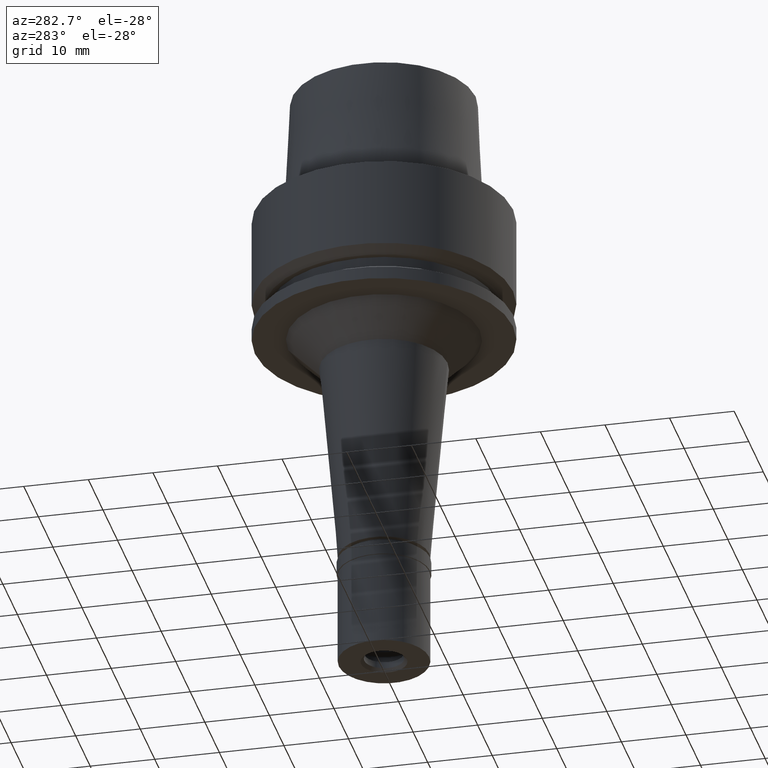
[diagram: clean part render]
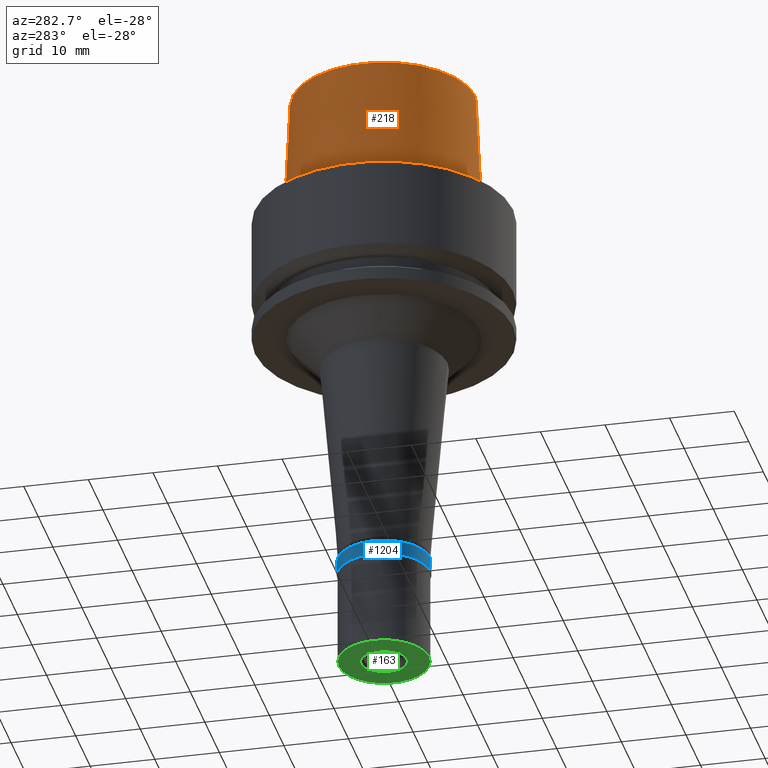
[diagram: same view with three faces highlighted in distinct colors, each labeled with its STEP entity id]
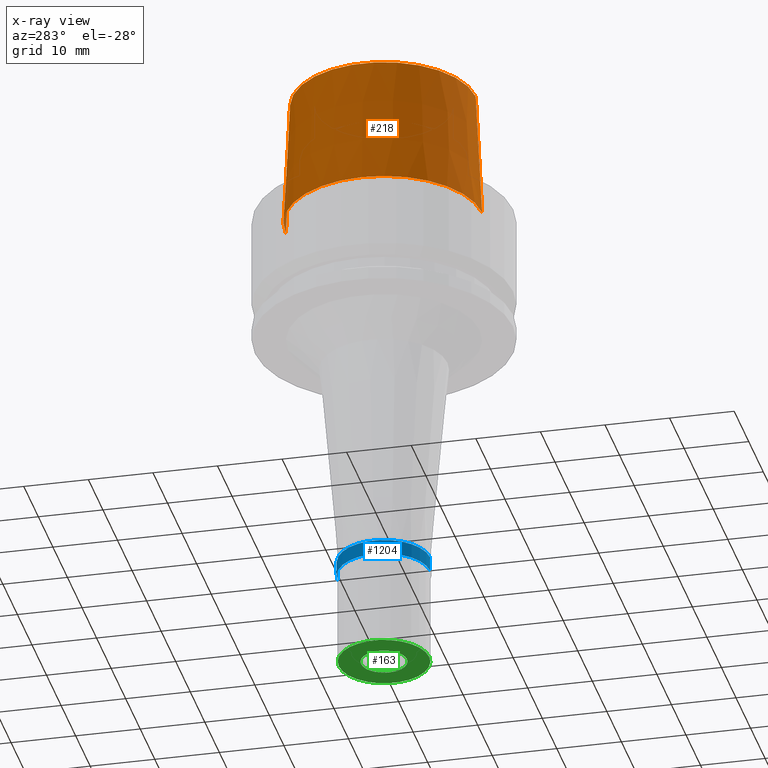
[diagram: x-ray of the same camera — body ghosted, the three highlighted faces saturated]
A machine part, auxiliary view with three faces highlighted in distinct colors.
The next image is the same camera in x-ray (body ghosted, the three faces saturated) — at least one of them is partly hidden behind the body in this view.
Their STEP definitions:

[orange] entity #218 — the highlighted conical surface has half-angle 2.862 deg.
#12 = VECTOR ( 'NONE', #862, 999.9999999999998863 ) ;
#18 = DIRECTION ( 'NONE',  ( 0.0000000000000000000, -1.000000000000000000, 0.0000000000000000000 ) ) ;
#49 = CONICAL_SURFACE ( 'NONE', #2132, 14.70000054865000116, 0.04995830450907576964 ) ;
#130 = ORIENTED_EDGE ( 'NONE', *, *, #514, .T. ) ;
#132 = AXIS2_PLACEMENT_3D ( 'NONE', #1898, #2487, #18 ) ;
#218 = ADVANCED_FACE ( 'NONE', ( #1400 ), #49, .T. ) ;
#236 = CARTESIAN_POINT ( 'NONE',  ( 0.0000000000000000000, -14.20000146305999955, 20.00000000000000000 ) ) ;
#275 = CARTESIAN_POINT ( 'NONE',  ( 0.0000000000000000000, -14.20000146305999955, 20.00000000000000000 ) ) ;
#312 = AXIS2_PLACEMENT_3D ( 'NONE', #2578, #1110, #706 ) ;
#351 = CARTESIAN_POINT ( 'NONE',  ( 0.0000000000000000000, -15.19999963424000100, 3.801403636316999971E-13 ) ) ;
#514 = EDGE_CURVE ( 'NONE', #1008, #2101, #2005, .T. ) ;
#520 = EDGE_CURVE ( 'NONE', #2101, #578, #1268, .T. ) ;
#524 = ORIENTED_EDGE ( 'NONE', *, *, #559, .F. ) ;
#531 = CIRCLE ( 'NONE', #312, 15.19999963424000100 ) ;
#540 = DIRECTION ( 'NONE',  ( 0.0000000000000000000, 0.0000000000000000000, -1.000000000000000000 ) ) ;
#559 = EDGE_CURVE ( 'NONE', #1008, #1394, #651, .T. ) ;
#578 = VERTEX_POINT ( 'NONE', #1245 ) ;
#627 = CARTESIAN_POINT ( 'NONE',  ( 0.0000000000000000000, 14.20000146305999955, 20.00000000000000000 ) ) ;
#651 = LINE ( 'NONE', #236, #1013 ) ;
#706 = DIRECTION ( 'NONE',  ( 0.0000000000000000000, 1.000000000000000000, 0.0000000000000000000 ) ) ;
#734 = CARTESIAN_POINT ( 'NONE',  ( 0.0000000000000000000, 0.0000000000000000000, 10.00000000000000000 ) ) ;
#769 = ORIENTED_EDGE ( 'NONE', *, *, #520, .T. ) ;
#862 = DIRECTION ( 'NONE',  ( 0.0000000000000000000, 0.04993752584496928548, -0.9987523434327867378 ) ) ;
#1008 = VERTEX_POINT ( 'NONE', #275 ) ;
#1013 = VECTOR ( 'NONE', #1089, 999.9999999999998863 ) ;
#1089 = DIRECTION ( 'NONE',  ( 0.0000000000000000000, -0.04993752584496928548, -0.9987523434327867378 ) ) ;
#1110 = DIRECTION ( 'NONE',  ( 0.0000000000000000000, 0.0000000000000000000, 1.000000000000000000 ) ) ;
#1245 = CARTESIAN_POINT ( 'NONE',  ( 0.0000000000000000000, 15.19999963424000100, 3.801403636316999971E-13 ) ) ;
#1268 = LINE ( 'NONE', #627, #12 ) ;
#1298 = ORIENTED_EDGE ( 'NONE', *, *, #2324, .T. ) ;
#1385 = EDGE_LOOP ( 'NONE', ( #1298, #524, #130, #769 ) ) ;
#1394 = VERTEX_POINT ( 'NONE', #351 ) ;
#1400 = FACE_OUTER_BOUND ( 'NONE', #1385, .T. ) ;
#1898 = CARTESIAN_POINT ( 'NONE',  ( 0.0000000000000000000, 0.0000000000000000000, 20.00000000000000000 ) ) ;
#2005 = CIRCLE ( 'NONE', #132, 14.20000146305999955 ) ;
#2101 = VERTEX_POINT ( 'NONE', #2677 ) ;
#2132 = AXIS2_PLACEMENT_3D ( 'NONE', #734, #540, #2657 ) ;
#2324 = EDGE_CURVE ( 'NONE', #578, #1394, #531, .T. ) ;
#2487 = DIRECTION ( 'NONE',  ( 0.0000000000000000000, 0.0000000000000000000, -1.000000000000000000 ) ) ;
#2578 = CARTESIAN_POINT ( 'NONE',  ( 0.0000000000000000000, 0.0000000000000000000, 6.821210263297000155E-13 ) ) ;
#2657 = DIRECTION ( 'NONE',  ( 0.0000000000000000000, -1.000000000000000000, 0.0000000000000000000 ) ) ;
#2677 = CARTESIAN_POINT ( 'NONE',  ( 0.0000000000000000000, 14.20000146305999955, 20.00000000000000000 ) ) ;

[blue] entity #1204 — the highlighted cylindrical surface (partial cylindrical patch) has radius 7.15 mm, axis along (0, 0, 1).
#164 = CIRCLE ( 'NONE', #1053, 7.150000000000000355 ) ;
#170 = LINE ( 'NONE', #1798, #2177 ) ;
#245 = DIRECTION ( 'NONE',  ( 0.0000000000000000000, -1.000000000000000000, 0.0000000000000000000 ) ) ;
#246 = ORIENTED_EDGE ( 'NONE', *, *, #2631, .T. ) ;
#292 = EDGE_LOOP ( 'NONE', ( #607, #1342, #1825, #246 ) ) ;
#384 = DIRECTION ( 'NONE',  ( 0.0000000000000000000, 0.0000000000000000000, -1.000000000000000000 ) ) ;
#471 = AXIS2_PLACEMENT_3D ( 'NONE', #2320, #529, #1287 ) ;
#529 = DIRECTION ( 'NONE',  ( 0.0000000000000000000, 0.0000000000000000000, 1.000000000000000000 ) ) ;
#604 = CIRCLE ( 'NONE', #828, 7.150000000000000355 ) ;
#607 = ORIENTED_EDGE ( 'NONE', *, *, #1375, .T. ) ;
#683 = VERTEX_POINT ( 'NONE', #2634 ) ;
#759 = CARTESIAN_POINT ( 'NONE',  ( 0.0000000000000000000, -7.150000000000000355, -2.299999999999999822 ) ) ;
#764 = CARTESIAN_POINT ( 'NONE',  ( 0.0000000000000000000, -7.150000000000000355, 0.0000000000000000000 ) ) ;
#798 = CARTESIAN_POINT ( 'NONE',  ( 0.0000000000000000000, 0.0000000000000000000, -2.299999999999999822 ) ) ;
#828 = AXIS2_PLACEMENT_3D ( 'NONE', #798, #2013, #1630 ) ;
#931 = CARTESIAN_POINT ( 'NONE',  ( 0.0000000000000000000, 7.150000000000000355, -2.299999999999999822 ) ) ;
#1053 = AXIS2_PLACEMENT_3D ( 'NONE', #1471, #1255, #245 ) ;
#1158 = VERTEX_POINT ( 'NONE', #931 ) ;
#1204 = ADVANCED_FACE ( 'NONE', ( #2400 ), #1955, .T. ) ;
#1255 = DIRECTION ( 'NONE',  ( 0.0000000000000000000, 0.0000000000000000000, -1.000000000000000000 ) ) ;
#1287 = DIRECTION ( 'NONE',  ( 0.0000000000000000000, 1.000000000000000000, 0.0000000000000000000 ) ) ;
#1342 = ORIENTED_EDGE ( 'NONE', *, *, #1546, .F. ) ;
#1375 = EDGE_CURVE ( 'NONE', #1158, #2691, #604, .T. ) ;
#1471 = CARTESIAN_POINT ( 'NONE',  ( 0.0000000000000000000, 0.0000000000000000000, 1.776356839399999922E-14 ) ) ;
#1546 = EDGE_CURVE ( 'NONE', #1869, #2691, #1771, .T. ) ;
#1630 = DIRECTION ( 'NONE',  ( 0.0000000000000000000, 1.000000000000000000, 0.0000000000000000000 ) ) ;
#1771 = LINE ( 'NONE', #764, #2078 ) ;
#1798 = CARTESIAN_POINT ( 'NONE',  ( 0.0000000000000000000, 7.150000000000000355, 0.0000000000000000000 ) ) ;
#1811 = CARTESIAN_POINT ( 'NONE',  ( 0.0000000000000000000, -7.150000000000000355, 1.776356839399999922E-14 ) ) ;
#1825 = ORIENTED_EDGE ( 'NONE', *, *, #2276, .T. ) ;
#1869 = VERTEX_POINT ( 'NONE', #1811 ) ;
#1955 = CYLINDRICAL_SURFACE ( 'NONE', #471, 7.150000000000000355 ) ;
#2013 = DIRECTION ( 'NONE',  ( 0.0000000000000000000, 0.0000000000000000000, 1.000000000000000000 ) ) ;
#2078 = VECTOR ( 'NONE', #2428, 1000.000000000000000 ) ;
#2177 = VECTOR ( 'NONE', #384, 1000.000000000000000 ) ;
#2276 = EDGE_CURVE ( 'NONE', #1869, #683, #164, .T. ) ;
#2320 = CARTESIAN_POINT ( 'NONE',  ( 0.0000000000000000000, 0.0000000000000000000, -17.85000000000000142 ) ) ;
#2400 = FACE_OUTER_BOUND ( 'NONE', #292, .T. ) ;
#2428 = DIRECTION ( 'NONE',  ( 0.0000000000000000000, 0.0000000000000000000, -1.000000000000000000 ) ) ;
#2631 = EDGE_CURVE ( 'NONE', #683, #1158, #170, .T. ) ;
#2634 = CARTESIAN_POINT ( 'NONE',  ( 0.0000000000000000000, 7.150000000000000355, 1.776356839399999922E-14 ) ) ;
#2691 = VERTEX_POINT ( 'NONE', #759 ) ;

[green] entity #163 — the highlighted planar face has unit normal (0, 0, 1).
#19 = EDGE_CURVE ( 'NONE', #1981, #2168, #264, .T. ) ;
#163 = ADVANCED_FACE ( 'NONE', ( #2148, #1592 ), #2640, .F. ) ;
#191 = ORIENTED_EDGE ( 'NONE', *, *, #19, .F. ) ;
#242 = EDGE_CURVE ( 'NONE', #2168, #1981, #1705, .T. ) ;
#264 = CIRCLE ( 'NONE', #2182, 7.000000000000000000 ) ;
#284 = CARTESIAN_POINT ( 'NONE',  ( 0.0000000000000000000, 0.0000000000000000000, -17.00000000000000000 ) ) ;
#302 = DIRECTION ( 'NONE',  ( 0.0000000000000000000, -1.000000000000000000, 0.0000000000000000000 ) ) ;
#334 = DIRECTION ( 'NONE',  ( 0.0000000000000000000, -1.000000000000000000, 0.0000000000000000000 ) ) ;
#495 = VERTEX_POINT ( 'NONE', #2075 ) ;
#505 = CARTESIAN_POINT ( 'NONE',  ( 0.0000000000000000000, 0.0000000000000000000, -17.00000000000000000 ) ) ;
#643 = EDGE_CURVE ( 'NONE', #495, #2605, #2356, .T. ) ;
#775 = DIRECTION ( 'NONE',  ( 0.0000000000000000000, 0.0000000000000000000, 1.000000000000000000 ) ) ;
#848 = AXIS2_PLACEMENT_3D ( 'NONE', #505, #2170, #302 ) ;
#969 = AXIS2_PLACEMENT_3D ( 'NONE', #2025, #1001, #334 ) ;
#996 = DIRECTION ( 'NONE',  ( 0.0000000000000000000, 0.0000000000000000000, -1.000000000000000000 ) ) ;
#1001 = DIRECTION ( 'NONE',  ( 0.0000000000000000000, 0.0000000000000000000, 1.000000000000000000 ) ) ;
#1101 = DIRECTION ( 'NONE',  ( 0.0000000000000000000, 1.000000000000000000, 0.0000000000000000000 ) ) ;
#1293 = EDGE_LOOP ( 'NONE', ( #2246, #2686 ) ) ;
#1335 = DIRECTION ( 'NONE',  ( 0.0000000000000000000, 0.0000000000000000000, 1.000000000000000000 ) ) ;
#1354 = CARTESIAN_POINT ( 'NONE',  ( 0.0000000000000000000, -3.550000000000000266, -17.00000000000000000 ) ) ;
#1359 = DIRECTION ( 'NONE',  ( 1.000000000000000000, 0.0000000000000000000, 0.0000000000000000000 ) ) ;
#1391 = DIRECTION ( 'NONE',  ( 0.0000000000000000000, 1.000000000000000000, 0.0000000000000000000 ) ) ;
#1592 = FACE_BOUND ( 'NONE', #1293, .T. ) ;
#1705 = CIRCLE ( 'NONE', #969, 7.000000000000000000 ) ;
#1777 = CIRCLE ( 'NONE', #848, 3.550000000000000266 ) ;
#1872 = ORIENTED_EDGE ( 'NONE', *, *, #242, .F. ) ;
#1973 = CARTESIAN_POINT ( 'NONE',  ( 0.0000000000000000000, 0.0000000000000000000, -17.00000000000000000 ) ) ;
#1981 = VERTEX_POINT ( 'NONE', #2255 ) ;
#2025 = CARTESIAN_POINT ( 'NONE',  ( 0.0000000000000000000, 0.0000000000000000000, -17.00000000000000000 ) ) ;
#2040 = CARTESIAN_POINT ( 'NONE',  ( 0.0000000000000000000, 0.0000000000000000000, -17.00000000000000000 ) ) ;
#2047 = AXIS2_PLACEMENT_3D ( 'NONE', #1973, #996, #1391 ) ;
#2075 = CARTESIAN_POINT ( 'NONE',  ( 0.0000000000000000000, 3.550000000000000266, -17.00000000000000000 ) ) ;
#2148 = FACE_OUTER_BOUND ( 'NONE', #2543, .T. ) ;
#2168 = VERTEX_POINT ( 'NONE', #2325 ) ;
#2170 = DIRECTION ( 'NONE',  ( 0.0000000000000000000, 0.0000000000000000000, -1.000000000000000000 ) ) ;
#2182 = AXIS2_PLACEMENT_3D ( 'NONE', #284, #1335, #1101 ) ;
#2246 = ORIENTED_EDGE ( 'NONE', *, *, #643, .F. ) ;
#2255 = CARTESIAN_POINT ( 'NONE',  ( 0.0000000000000000000, 7.000000000000000000, -17.00000000000000000 ) ) ;
#2325 = CARTESIAN_POINT ( 'NONE',  ( 0.0000000000000000000, -7.000000000000000000, -17.00000000000000000 ) ) ;
#2356 = CIRCLE ( 'NONE', #2047, 3.550000000000000266 ) ;
#2360 = AXIS2_PLACEMENT_3D ( 'NONE', #2040, #775, #1359 ) ;
#2484 = EDGE_CURVE ( 'NONE', #2605, #495, #1777, .T. ) ;
#2543 = EDGE_LOOP ( 'NONE', ( #191, #1872 ) ) ;
#2605 = VERTEX_POINT ( 'NONE', #1354 ) ;
#2640 = PLANE ( 'NONE',  #2360 ) ;
#2686 = ORIENTED_EDGE ( 'NONE', *, *, #2484, .F. ) ;